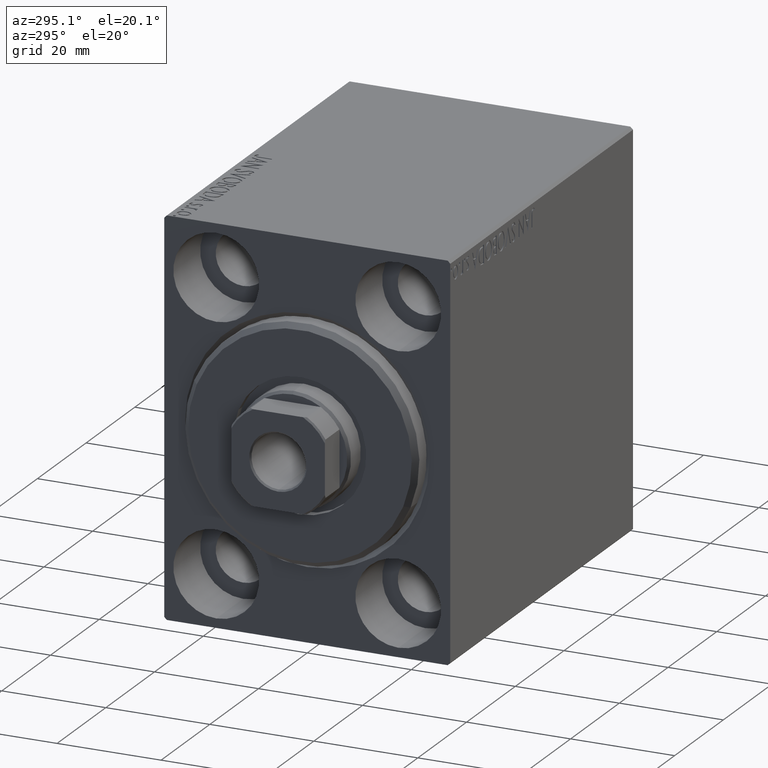
[diagram: clean part render]
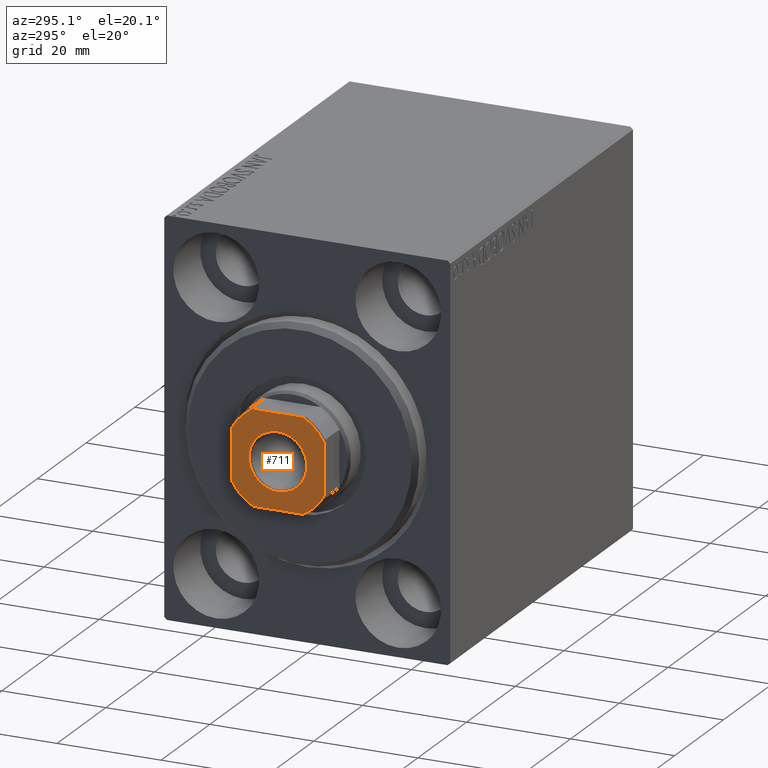
[diagram: same view with one face highlighted and labeled with its STEP entity id]
A machine part, auxiliary view. The second image highlights one B-rep face of the part: STEP entity #711.
In plain terms, the highlighted planar face has unit normal (-1, 0, 0).
Its self-contained STEP definition (entity closure, byte-faithful):
#18 = CARTESIAN_POINT ( 'NONE',  ( 0.000000000000000000, 0.000000000000000000, 77.00000000000001421 ) ) ;
#416 = ORIENTED_EDGE ( 'NONE', *, *, #13020, .T. ) ;
#711 = ADVANCED_FACE ( 'NONE', ( #35461, #32167 ), #2176, .T. ) ;
#1915 = ORIENTED_EDGE ( 'NONE', *, *, #8140, .T. ) ;
#1977 = CARTESIAN_POINT ( 'NONE',  ( 9.000000000000001776, -4.800000000000007816, 77.00000000000001421 ) ) ;
#2176 = PLANE ( 'NONE',  #26240 ) ;
#2326 = CARTESIAN_POINT ( 'NONE',  ( 8.999999999999998224, 8.999999999999998224, 77.00000000000001421 ) ) ;
#2333 = VERTEX_POINT ( 'NONE', #9472 ) ;
#2870 = ORIENTED_EDGE ( 'NONE', *, *, #10916, .T. ) ;
#3175 = LINE ( 'NONE', #16620, #9410 ) ;
#3385 = VECTOR ( 'NONE', #32102, 1000.000000000000000 ) ;
#3494 = VERTEX_POINT ( 'NONE', #6579 ) ;
#3533 = DIRECTION ( 'NONE',  ( 1.000000000000000000, 0.000000000000000000, 0.000000000000000000 ) ) ;
#3829 = VECTOR ( 'NONE', #17059, 1000.000000000000000 ) ;
#4825 = DIRECTION ( 'NONE',  ( -0.000000000000000000, 0.000000000000000000, 1.000000000000000000 ) ) ;
#5252 = CARTESIAN_POINT ( 'NONE',  ( -9.000000000000001776, 8.999999999999998224, 77.00000000000001421 ) ) ;
#5366 = CIRCLE ( 'NONE', #41944, 5.550000000000013145 ) ;
#5494 = CARTESIAN_POINT ( 'NONE',  ( 0.000000000000000000, 0.000000000000000000, 77.00000000000001421 ) ) ;
#5924 = VERTEX_POINT ( 'NONE', #11135 ) ;
#6579 = CARTESIAN_POINT ( 'NONE',  ( 4.800000000000012257, 8.999999999999998224, 77.00000000000001421 ) ) ;
#7646 = VERTEX_POINT ( 'NONE', #19663 ) ;
#8140 = EDGE_CURVE ( 'NONE', #5924, #16707, #20146, .T. ) ;
#8483 = VERTEX_POINT ( 'NONE', #1977 ) ;
#8836 = AXIS2_PLACEMENT_3D ( 'NONE', #43552, #29918, #19767 ) ;
#9410 = VECTOR ( 'NONE', #30070, 1000.000000000000000 ) ;
#9432 = DIRECTION ( 'NONE',  ( -1.000000000000000000, -0.000000000000000000, -0.000000000000000000 ) ) ;
#9472 = CARTESIAN_POINT ( 'NONE',  ( -5.550000000000013145, 6.796789735267826558E-16, 77.00000000000001421 ) ) ;
#9723 = DIRECTION ( 'NONE',  ( -0.000000000000000000, 0.000000000000000000, 1.000000000000000000 ) ) ;
#9828 = EDGE_CURVE ( 'NONE', #16707, #33289, #17234, .T. ) ;
#10587 = CARTESIAN_POINT ( 'NONE',  ( 0.000000000000000000, 0.000000000000000000, 77.00000000000001421 ) ) ;
#10599 = DIRECTION ( 'NONE',  ( -0.000000000000000000, 0.000000000000000000, 1.000000000000000000 ) ) ;
#10794 = ORIENTED_EDGE ( 'NONE', *, *, #38126, .T. ) ;
#10916 = EDGE_CURVE ( 'NONE', #18691, #8483, #37681, .T. ) ;
#11046 = CARTESIAN_POINT ( 'NONE',  ( 5.550000000000013145, 0.000000000000000000, 77.00000000000001421 ) ) ;
#11135 = CARTESIAN_POINT ( 'NONE',  ( -9.000000000000001776, 4.799999999999986500, 77.00000000000001421 ) ) ;
#11396 = CARTESIAN_POINT ( 'NONE',  ( -8.999999999999998224, -4.799999999999999822, 77.00000000000001421 ) ) ;
#11502 = ORIENTED_EDGE ( 'NONE', *, *, #39103, .T. ) ;
#12346 = ORIENTED_EDGE ( 'NONE', *, *, #12756, .T. ) ;
#12756 = EDGE_CURVE ( 'NONE', #2333, #25531, #17327, .T. ) ;
#13020 = EDGE_CURVE ( 'NONE', #25531, #2333, #5366, .T. ) ;
#15198 = DIRECTION ( 'NONE',  ( 1.000000000000000000, 0.000000000000000000, 0.000000000000000000 ) ) ;
#16550 = AXIS2_PLACEMENT_3D ( 'NONE', #25307, #4825, #24874 ) ;
#16620 = CARTESIAN_POINT ( 'NONE',  ( -8.999999999999998224, -9.000000000000001776, 77.00000000000001421 ) ) ;
#16707 = VERTEX_POINT ( 'NONE', #11396 ) ;
#16845 = CARTESIAN_POINT ( 'NONE',  ( -9.000000000000001776, 8.999999999999998224, 77.00000000000001421 ) ) ;
#17031 = CIRCLE ( 'NONE', #17725, 10.19999999999999396 ) ;
#17059 = DIRECTION ( 'NONE',  ( 1.927470528863119049E-16, -1.000000000000000000, 0.000000000000000000 ) ) ;
#17234 = CIRCLE ( 'NONE', #16550, 10.19999999999999929 ) ;
#17327 = CIRCLE ( 'NONE', #20849, 5.550000000000013145 ) ;
#17725 = AXIS2_PLACEMENT_3D ( 'NONE', #10587, #9723, #3533 ) ;
#18348 = VECTOR ( 'NONE', #9432, 1000.000000000000000 ) ;
#18691 = VERTEX_POINT ( 'NONE', #24219 ) ;
#19663 = CARTESIAN_POINT ( 'NONE',  ( -4.799999999999990941, 8.999999999999998224, 77.00000000000001421 ) ) ;
#19767 = DIRECTION ( 'NONE',  ( 1.000000000000000000, 0.000000000000000000, 0.000000000000000000 ) ) ;
#19932 = CIRCLE ( 'NONE', #24760, 10.20000000000000462 ) ;
#20146 = LINE ( 'NONE', #16845, #3829 ) ;
#20849 = AXIS2_PLACEMENT_3D ( 'NONE', #24183, #37617, #34531 ) ;
#21194 = DIRECTION ( 'NONE',  ( 0.000000000000000000, -0.000000000000000000, -1.000000000000000000 ) ) ;
#21254 = VERTEX_POINT ( 'NONE', #32796 ) ;
#22345 = EDGE_CURVE ( 'NONE', #8483, #21254, #42430, .T. ) ;
#22462 = DIRECTION ( 'NONE',  ( -0.000000000000000000, 0.000000000000000000, 1.000000000000000000 ) ) ;
#23068 = ORIENTED_EDGE ( 'NONE', *, *, #31668, .T. ) ;
#24183 = CARTESIAN_POINT ( 'NONE',  ( 0.000000000000000000, 0.000000000000000000, 77.00000000000001421 ) ) ;
#24219 = CARTESIAN_POINT ( 'NONE',  ( 4.800000000000006928, -9.000000000000001776, 77.00000000000001421 ) ) ;
#24760 = AXIS2_PLACEMENT_3D ( 'NONE', #18, #10599, #37472 ) ;
#24874 = DIRECTION ( 'NONE',  ( 1.000000000000000000, 0.000000000000000000, 0.000000000000000000 ) ) ;
#25307 = CARTESIAN_POINT ( 'NONE',  ( 0.000000000000000000, 0.000000000000000000, 77.00000000000001421 ) ) ;
#25531 = VERTEX_POINT ( 'NONE', #11046 ) ;
#26240 = AXIS2_PLACEMENT_3D ( 'NONE', #5494, #22462, #15198 ) ;
#28249 = DIRECTION ( 'NONE',  ( 1.000000000000000000, 0.000000000000000000, 0.000000000000000000 ) ) ;
#28895 = ORIENTED_EDGE ( 'NONE', *, *, #9828, .T. ) ;
#29918 = DIRECTION ( 'NONE',  ( -0.000000000000000000, 0.000000000000000000, 1.000000000000000000 ) ) ;
#30070 = DIRECTION ( 'NONE',  ( 1.000000000000000000, 0.000000000000000000, 0.000000000000000000 ) ) ;
#31668 = EDGE_CURVE ( 'NONE', #3494, #7646, #39172, .T. ) ;
#32102 = DIRECTION ( 'NONE',  ( -1.927470528863119049E-16, 1.000000000000000000, -0.000000000000000000 ) ) ;
#32167 = FACE_OUTER_BOUND ( 'NONE', #35609, .T. ) ;
#32796 = CARTESIAN_POINT ( 'NONE',  ( 8.999999999999998224, 4.800000000000010481, 77.00000000000001421 ) ) ;
#33289 = VERTEX_POINT ( 'NONE', #37994 ) ;
#33811 = EDGE_LOOP ( 'NONE', ( #416, #12346 ) ) ;
#34531 = DIRECTION ( 'NONE',  ( 1.000000000000000000, 0.000000000000000000, 0.000000000000000000 ) ) ;
#35235 = EDGE_CURVE ( 'NONE', #7646, #5924, #17031, .T. ) ;
#35461 = FACE_BOUND ( 'NONE', #33811, .T. ) ;
#35500 = ORIENTED_EDGE ( 'NONE', *, *, #35235, .T. ) ;
#35609 = EDGE_LOOP ( 'NONE', ( #41244, #10794, #23068, #35500, #1915, #28895, #11502, #2870 ) ) ;
#37472 = DIRECTION ( 'NONE',  ( 1.000000000000000000, 0.000000000000000000, 0.000000000000000000 ) ) ;
#37617 = DIRECTION ( 'NONE',  ( 0.000000000000000000, -0.000000000000000000, -1.000000000000000000 ) ) ;
#37681 = CIRCLE ( 'NONE', #8836, 10.20000000000000462 ) ;
#37994 = CARTESIAN_POINT ( 'NONE',  ( -4.799999999999995381, -9.000000000000001776, 77.00000000000001421 ) ) ;
#38126 = EDGE_CURVE ( 'NONE', #21254, #3494, #19932, .T. ) ;
#39103 = EDGE_CURVE ( 'NONE', #33289, #18691, #3175, .T. ) ;
#39172 = LINE ( 'NONE', #5252, #18348 ) ;
#41244 = ORIENTED_EDGE ( 'NONE', *, *, #22345, .T. ) ;
#41670 = CARTESIAN_POINT ( 'NONE',  ( 0.000000000000000000, 0.000000000000000000, 77.00000000000001421 ) ) ;
#41944 = AXIS2_PLACEMENT_3D ( 'NONE', #41670, #21194, #28249 ) ;
#42430 = LINE ( 'NONE', #2326, #3385 ) ;
#43552 = CARTESIAN_POINT ( 'NONE',  ( 0.000000000000000000, 0.000000000000000000, 77.00000000000001421 ) ) ;